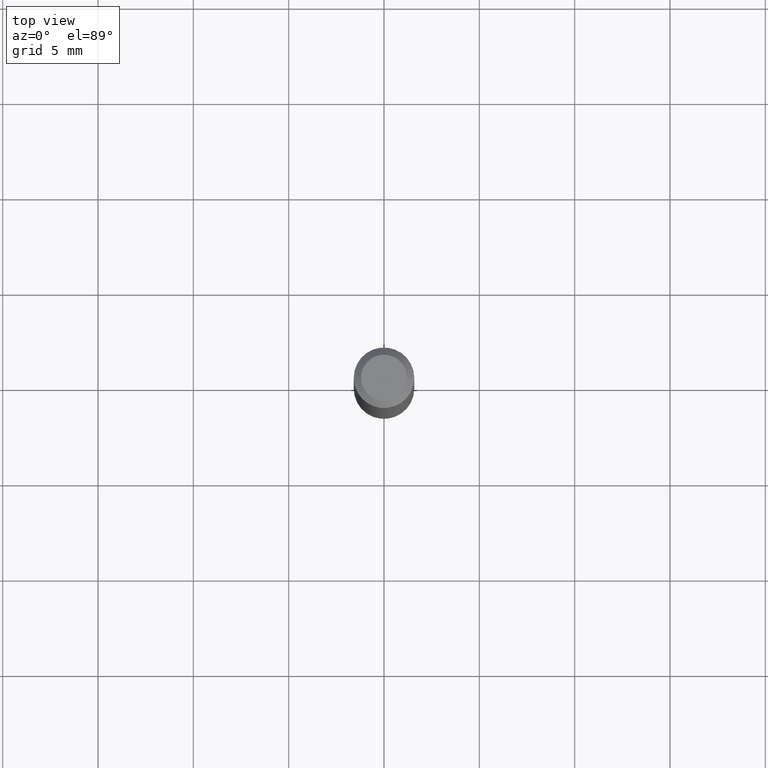
[diagram: clean part render]
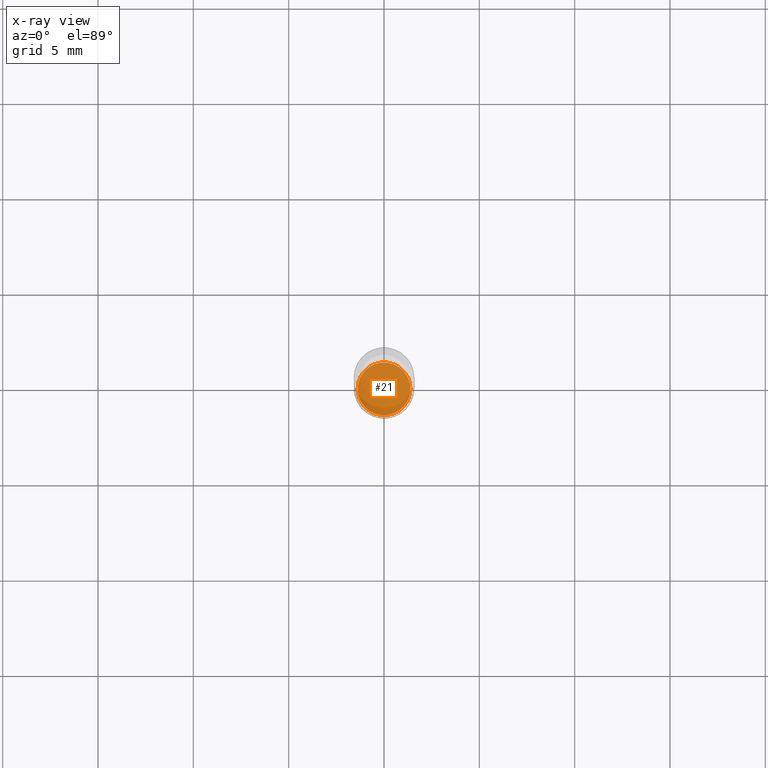
[diagram: x-ray — body ghosted, one internal face saturated and labeled with its STEP entity id]
A machine part, top view, then the same camera in x-ray: the body is ghosted and one INTERNAL B-rep face — a face not visible from any outside direction — is saturated and labeled: STEP entity #21.
In plain terms, the highlighted planar face has unit normal (-0, 0, 1).
Its self-contained STEP definition (entity closure, byte-faithful):
#11 = CARTESIAN_POINT ( 'NONE',  ( 3.264700856257157760E-29, -4.661127587355599122E-15, -1.335000000000000187 ) ) ;
#13 = VERTEX_POINT ( 'NONE', #264 ) ;
#21 = ADVANCED_FACE ( 'NONE', ( #270 ), #407, .F. ) ;
#28 = DIRECTION ( 'NONE',  ( -2.445468806185136597E-29, 3.491481338843145583E-15, 1.000000000000000000 ) ) ;
#34 = DIRECTION ( 'NONE',  ( 1.000000000000000000, -6.982962677686270655E-15, 0.000000000000000000 ) ) ;
#38 = EDGE_CURVE ( 'NONE', #184, #13, #63, .T. ) ;
#63 = CIRCLE ( 'NONE', #268, 0.05449999999999999983 ) ;
#89 = DIRECTION ( 'NONE',  ( -2.445468806185136597E-29, 3.491481338843145583E-15, 1.000000000000000000 ) ) ;
#184 = VERTEX_POINT ( 'NONE', #355 ) ;
#199 = DIRECTION ( 'NONE',  ( 1.000000000000000000, -6.982962677686265922E-15, 4.876176775795935793E-29 ) ) ;
#234 = ORIENTED_EDGE ( 'NONE', *, *, #458, .F. ) ;
#244 = DIRECTION ( 'NONE',  ( 1.000000000000000000, -6.982962677686270655E-15, 0.000000000000000000 ) ) ;
#264 = CARTESIAN_POINT ( 'NONE',  ( 0.05449999999999999983, -5.041699053289501100E-15, -1.335000000000000187 ) ) ;
#268 = AXIS2_PLACEMENT_3D ( 'NONE', #275, #89, #244 ) ;
#270 = FACE_OUTER_BOUND ( 'NONE', #393, .T. ) ;
#275 = CARTESIAN_POINT ( 'NONE',  ( 3.264700856257157760E-29, -4.661127587355599122E-15, -1.335000000000000187 ) ) ;
#288 = AXIS2_PLACEMENT_3D ( 'NONE', #11, #440, #199 ) ;
#328 = ORIENTED_EDGE ( 'NONE', *, *, #38, .F. ) ;
#355 = CARTESIAN_POINT ( 'NONE',  ( -0.05449999999999999983, -4.271232569192234159E-15, -1.335000000000000187 ) ) ;
#364 = CARTESIAN_POINT ( 'NONE',  ( 3.264700856257157760E-29, -4.661127587355599122E-15, -1.335000000000000187 ) ) ;
#383 = AXIS2_PLACEMENT_3D ( 'NONE', #364, #28, #34 ) ;
#393 = EDGE_LOOP ( 'NONE', ( #234, #328 ) ) ;
#396 = CIRCLE ( 'NONE', #383, 0.05449999999999999983 ) ;
#407 = PLANE ( 'NONE',  #288 ) ;
#440 = DIRECTION ( 'NONE',  ( -2.438088387897960049E-29, 3.491481338843145188E-15, 1.000000000000000000 ) ) ;
#458 = EDGE_CURVE ( 'NONE', #13, #184, #396, .T. ) ;